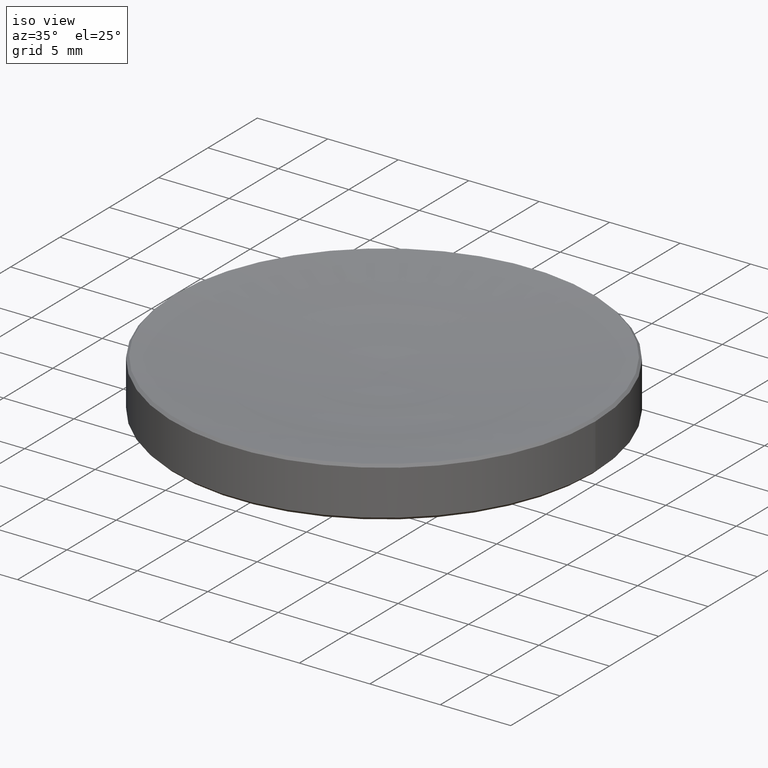
[diagram: clean part render]
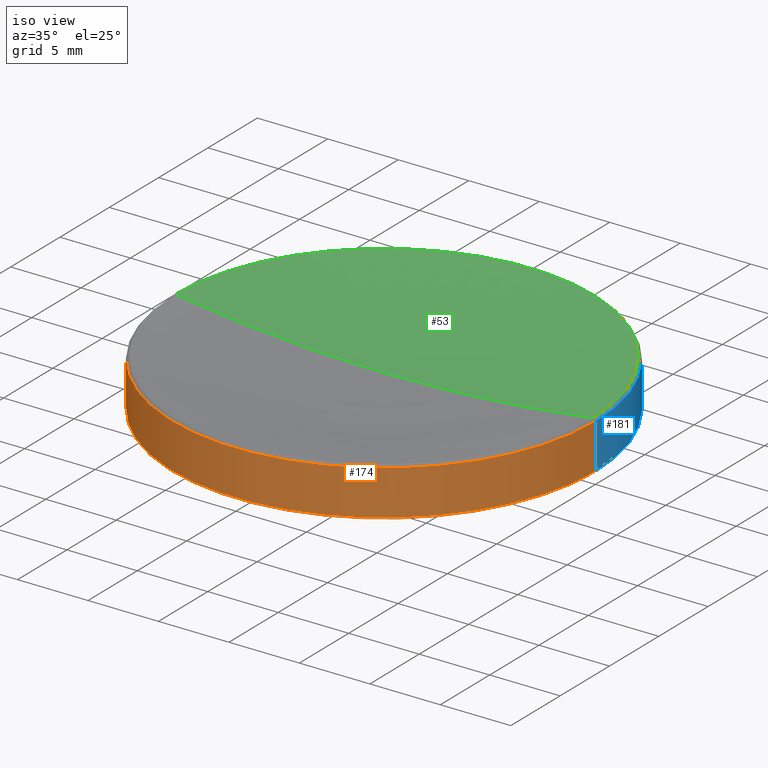
[diagram: same view with three faces highlighted in distinct colors, each labeled with its STEP entity id]
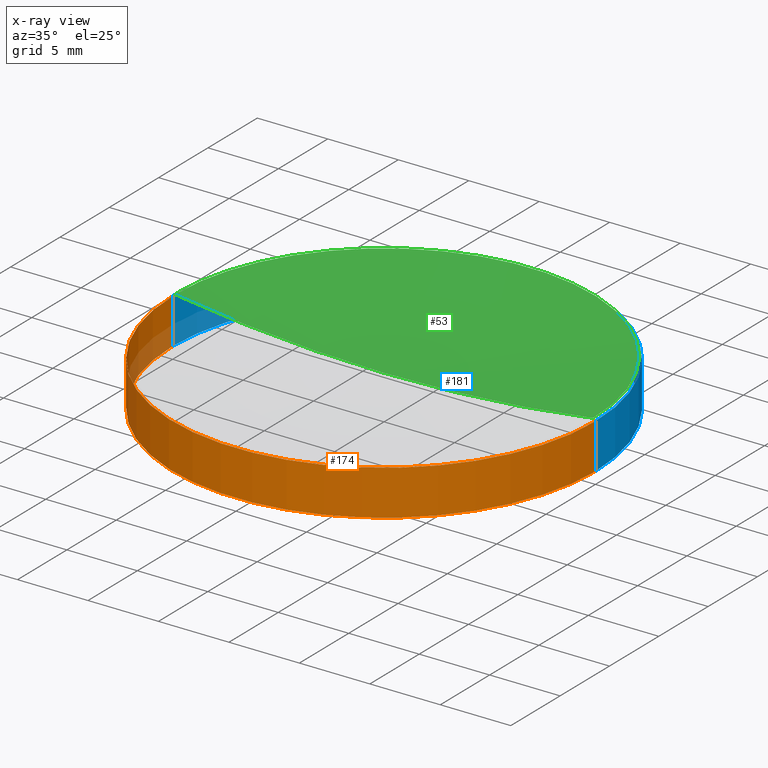
[diagram: x-ray of the same camera — body ghosted, the three highlighted faces saturated]
A machine part, iso view with three faces highlighted in distinct colors.
The next image is the same camera in x-ray (body ghosted, the three faces saturated) — at least one of them is partly hidden behind the body in this view.
Their STEP definitions:

[orange] entity #174 — the highlighted cylindrical surface (partial cylindrical patch) has radius 15 mm, axis along (-0, -0, 1).
#4 = ORIENTED_EDGE ( 'NONE', *, *, #248, .F. ) ;
#5 = ORIENTED_EDGE ( 'NONE', *, *, #38, .T. ) ;
#9 = CYLINDRICAL_SURFACE ( 'NONE', #42, 15.00000000000000000 ) ;
#10 = DIRECTION ( 'NONE',  ( -0.000000000000000000, -0.000000000000000000, 1.000000000000000000 ) ) ;
#13 = LINE ( 'NONE', #170, #104 ) ;
#19 = EDGE_CURVE ( 'NONE', #21, #137, #95, .T. ) ;
#21 = VERTEX_POINT ( 'NONE', #203 ) ;
#26 = CARTESIAN_POINT ( 'NONE',  ( 0.000000000000000000, 0.000000000000000000, 0.1999999999999996503 ) ) ;
#28 = CARTESIAN_POINT ( 'NONE',  ( 0.000000000000000000, 0.000000000000000000, 2.500000000000000000 ) ) ;
#33 = AXIS2_PLACEMENT_3D ( 'NONE', #121, #210, #166 ) ;
#36 = CARTESIAN_POINT ( 'NONE',  ( -15.00000000000000000, 1.836970198721029589E-15, 3.399999999999972378 ) ) ;
#38 = EDGE_CURVE ( 'NONE', #113, #21, #175, .T. ) ;
#41 = EDGE_LOOP ( 'NONE', ( #4, #5, #156, #142 ) ) ;
#42 = AXIS2_PLACEMENT_3D ( 'NONE', #28, #10, #257 ) ;
#58 = DIRECTION ( 'NONE',  ( -0.000000000000000000, -0.000000000000000000, 1.000000000000000000 ) ) ;
#66 = FACE_OUTER_BOUND ( 'NONE', #41, .T. ) ;
#75 = CIRCLE ( 'NONE', #33, 15.00000000000000000 ) ;
#95 = LINE ( 'NONE', #141, #162 ) ;
#104 = VECTOR ( 'NONE', #177, 1000.000000000000000 ) ;
#113 = VERTEX_POINT ( 'NONE', #256 ) ;
#121 = CARTESIAN_POINT ( 'NONE',  ( 0.000000000000000000, 0.000000000000000000, 3.399999999999972378 ) ) ;
#134 = AXIS2_PLACEMENT_3D ( 'NONE', #26, #58, #184 ) ;
#137 = VERTEX_POINT ( 'NONE', #190 ) ;
#141 = CARTESIAN_POINT ( 'NONE',  ( 15.00000000000000000, 0.000000000000000000, 2.500000000000000000 ) ) ;
#142 = ORIENTED_EDGE ( 'NONE', *, *, #197, .T. ) ;
#156 = ORIENTED_EDGE ( 'NONE', *, *, #19, .T. ) ;
#162 = VECTOR ( 'NONE', #204, 1000.000000000000000 ) ;
#166 = DIRECTION ( 'NONE',  ( -1.000000000000000000, 0.000000000000000000, 0.000000000000000000 ) ) ;
#170 = CARTESIAN_POINT ( 'NONE',  ( -15.00000000000000000, 1.836970198721029589E-15, 2.500000000000000000 ) ) ;
#174 = ADVANCED_FACE ( 'NONE', ( #66 ), #9, .T. ) ;
#175 = CIRCLE ( 'NONE', #134, 15.00000000000000000 ) ;
#177 = DIRECTION ( 'NONE',  ( -0.000000000000000000, -0.000000000000000000, 1.000000000000000000 ) ) ;
#184 = DIRECTION ( 'NONE',  ( 1.000000000000000000, 0.000000000000000000, 0.000000000000000000 ) ) ;
#190 = CARTESIAN_POINT ( 'NONE',  ( 15.00000000000000000, 0.000000000000000000, 3.399999999999972378 ) ) ;
#197 = EDGE_CURVE ( 'NONE', #137, #252, #75, .T. ) ;
#203 = CARTESIAN_POINT ( 'NONE',  ( 15.00000000000000000, 0.000000000000000000, 0.1999999999999996503 ) ) ;
#204 = DIRECTION ( 'NONE',  ( -0.000000000000000000, -0.000000000000000000, 1.000000000000000000 ) ) ;
#210 = DIRECTION ( 'NONE',  ( 0.000000000000000000, 0.000000000000000000, -1.000000000000000000 ) ) ;
#248 = EDGE_CURVE ( 'NONE', #113, #252, #13, .T. ) ;
#252 = VERTEX_POINT ( 'NONE', #36 ) ;
#256 = CARTESIAN_POINT ( 'NONE',  ( -15.00000000000000000, 1.836970198721029589E-15, 0.1999999999999996503 ) ) ;
#257 = DIRECTION ( 'NONE',  ( 1.000000000000000000, 0.000000000000000000, 0.000000000000000000 ) ) ;

[blue] entity #181 — the highlighted cylindrical surface (partial cylindrical patch) has radius 15 mm, axis along (-0, -0, 1).
#13 = LINE ( 'NONE', #170, #104 ) ;
#16 = AXIS2_PLACEMENT_3D ( 'NONE', #214, #234, #45 ) ;
#19 = EDGE_CURVE ( 'NONE', #21, #137, #95, .T. ) ;
#21 = VERTEX_POINT ( 'NONE', #203 ) ;
#35 = DIRECTION ( 'NONE',  ( -0.000000000000000000, -0.000000000000000000, 1.000000000000000000 ) ) ;
#36 = CARTESIAN_POINT ( 'NONE',  ( -15.00000000000000000, 1.836970198721029589E-15, 3.399999999999972378 ) ) ;
#39 = EDGE_LOOP ( 'NONE', ( #79, #140, #161, #187 ) ) ;
#45 = DIRECTION ( 'NONE',  ( -1.000000000000000000, 0.000000000000000000, 0.000000000000000000 ) ) ;
#47 = CIRCLE ( 'NONE', #126, 15.00000000000000000 ) ;
#79 = ORIENTED_EDGE ( 'NONE', *, *, #217, .T. ) ;
#85 = CARTESIAN_POINT ( 'NONE',  ( 0.000000000000000000, 0.000000000000000000, 2.500000000000000000 ) ) ;
#91 = AXIS2_PLACEMENT_3D ( 'NONE', #85, #119, #145 ) ;
#95 = LINE ( 'NONE', #141, #162 ) ;
#104 = VECTOR ( 'NONE', #177, 1000.000000000000000 ) ;
#113 = VERTEX_POINT ( 'NONE', #256 ) ;
#119 = DIRECTION ( 'NONE',  ( -0.000000000000000000, -0.000000000000000000, 1.000000000000000000 ) ) ;
#126 = AXIS2_PLACEMENT_3D ( 'NONE', #233, #35, #211 ) ;
#133 = EDGE_CURVE ( 'NONE', #252, #137, #240, .T. ) ;
#137 = VERTEX_POINT ( 'NONE', #190 ) ;
#140 = ORIENTED_EDGE ( 'NONE', *, *, #248, .T. ) ;
#141 = CARTESIAN_POINT ( 'NONE',  ( 15.00000000000000000, 0.000000000000000000, 2.500000000000000000 ) ) ;
#145 = DIRECTION ( 'NONE',  ( 1.000000000000000000, 0.000000000000000000, 0.000000000000000000 ) ) ;
#161 = ORIENTED_EDGE ( 'NONE', *, *, #133, .T. ) ;
#162 = VECTOR ( 'NONE', #204, 1000.000000000000000 ) ;
#164 = FACE_OUTER_BOUND ( 'NONE', #39, .T. ) ;
#170 = CARTESIAN_POINT ( 'NONE',  ( -15.00000000000000000, 1.836970198721029589E-15, 2.500000000000000000 ) ) ;
#177 = DIRECTION ( 'NONE',  ( -0.000000000000000000, -0.000000000000000000, 1.000000000000000000 ) ) ;
#181 = ADVANCED_FACE ( 'NONE', ( #164 ), #189, .T. ) ;
#187 = ORIENTED_EDGE ( 'NONE', *, *, #19, .F. ) ;
#189 = CYLINDRICAL_SURFACE ( 'NONE', #91, 15.00000000000000000 ) ;
#190 = CARTESIAN_POINT ( 'NONE',  ( 15.00000000000000000, 0.000000000000000000, 3.399999999999972378 ) ) ;
#203 = CARTESIAN_POINT ( 'NONE',  ( 15.00000000000000000, 0.000000000000000000, 0.1999999999999996503 ) ) ;
#204 = DIRECTION ( 'NONE',  ( -0.000000000000000000, -0.000000000000000000, 1.000000000000000000 ) ) ;
#211 = DIRECTION ( 'NONE',  ( 1.000000000000000000, 0.000000000000000000, 0.000000000000000000 ) ) ;
#214 = CARTESIAN_POINT ( 'NONE',  ( 0.000000000000000000, 0.000000000000000000, 3.399999999999972378 ) ) ;
#217 = EDGE_CURVE ( 'NONE', #21, #113, #47, .T. ) ;
#233 = CARTESIAN_POINT ( 'NONE',  ( 0.000000000000000000, 0.000000000000000000, 0.1999999999999996503 ) ) ;
#234 = DIRECTION ( 'NONE',  ( 0.000000000000000000, 0.000000000000000000, -1.000000000000000000 ) ) ;
#240 = CIRCLE ( 'NONE', #16, 15.00000000000000000 ) ;
#248 = EDGE_CURVE ( 'NONE', #113, #252, #13, .T. ) ;
#252 = VERTEX_POINT ( 'NONE', #36 ) ;
#256 = CARTESIAN_POINT ( 'NONE',  ( -15.00000000000000000, 1.836970198721029589E-15, 0.1999999999999996503 ) ) ;

[green] entity #53 — the highlighted toroidal blend (fillet) surface has major radius 0.0335 mm and minor (blend) radius 103.28 mm.
#2 = AXIS2_PLACEMENT_3D ( 'NONE', #102, #266, #223 ) ;
#6 = VERTEX_POINT ( 'NONE', #118 ) ;
#8 = DIRECTION ( 'NONE',  ( -0.000000000000000000, -0.000000000000000000, 1.000000000000000000 ) ) ;
#22 = ORIENTED_EDGE ( 'NONE', *, *, #232, .T. ) ;
#23 = FACE_OUTER_BOUND ( 'NONE', #180, .T. ) ;
#27 = CARTESIAN_POINT ( 'NONE',  ( 0.000000000000000000, 0.000000000000000000, 2.500000000000000000 ) ) ;
#31 = DIRECTION ( 'NONE',  ( 0.000000000000000000, 0.000000000000000000, -1.000000000000000000 ) ) ;
#34 = CIRCLE ( 'NONE', #195, 103.2800000000000011 ) ;
#46 = CIRCLE ( 'NONE', #2, 103.2800000000000011 ) ;
#48 = EDGE_CURVE ( 'NONE', #114, #224, #46, .T. ) ;
#53 = ADVANCED_FACE ( 'NONE', ( #23 ), #251, .F. ) ;
#56 = ORIENTED_EDGE ( 'NONE', *, *, #191, .T. ) ;
#60 = DIRECTION ( 'NONE',  ( 1.000000000000000000, 0.000000000000000000, 0.000000000000000000 ) ) ;
#65 = ORIENTED_EDGE ( 'NONE', *, *, #48, .F. ) ;
#68 = CARTESIAN_POINT ( 'NONE',  ( -0.03353293412618457009, 0.000000000000000000, 105.7799945562659616 ) ) ;
#87 = CARTESIAN_POINT ( 'NONE',  ( -14.82551889031213577, 1.815602425471937729E-15, 3.574481109687874358 ) ) ;
#102 = CARTESIAN_POINT ( 'NONE',  ( 0.03353293412618457009, -4.106600044365098363E-18, 105.7799945562659616 ) ) ;
#114 = VERTEX_POINT ( 'NONE', #27 ) ;
#118 = CARTESIAN_POINT ( 'NONE',  ( 14.82551889031213577, 0.000000000000000000, 3.574481109687874358 ) ) ;
#144 = AXIS2_PLACEMENT_3D ( 'NONE', #160, #249, #60 ) ;
#160 = CARTESIAN_POINT ( 'NONE',  ( 0.000000000000000000, 0.000000000000000000, 105.7799945562659616 ) ) ;
#180 = EDGE_LOOP ( 'NONE', ( #65, #22, #56 ) ) ;
#191 = EDGE_CURVE ( 'NONE', #6, #224, #194, .T. ) ;
#194 = CIRCLE ( 'NONE', #262, 14.82551889031212333 ) ;
#195 = AXIS2_PLACEMENT_3D ( 'NONE', #68, #212, #31 ) ;
#207 = CARTESIAN_POINT ( 'NONE',  ( 0.000000000000000000, 0.000000000000000000, 3.574481109687874358 ) ) ;
#212 = DIRECTION ( 'NONE',  ( 0.000000000000000000, -1.000000000000000000, 0.000000000000000000 ) ) ;
#223 = DIRECTION ( 'NONE',  ( -1.000000000000000000, 1.224646799147353207E-16, 0.000000000000000000 ) ) ;
#224 = VERTEX_POINT ( 'NONE', #87 ) ;
#231 = DIRECTION ( 'NONE',  ( 1.000000000000000000, 0.000000000000000000, 0.000000000000000000 ) ) ;
#232 = EDGE_CURVE ( 'NONE', #114, #6, #34, .T. ) ;
#249 = DIRECTION ( 'NONE',  ( -0.000000000000000000, -0.000000000000000000, 1.000000000000000000 ) ) ;
#251 = TOROIDAL_SURFACE ( 'NONE', #144, -0.03353293412618457009, 103.2800000000000011 ) ;
#262 = AXIS2_PLACEMENT_3D ( 'NONE', #207, #8, #231 ) ;
#266 = DIRECTION ( 'NONE',  ( 1.224646799147353207E-16, 1.000000000000000000, 0.000000000000000000 ) ) ;